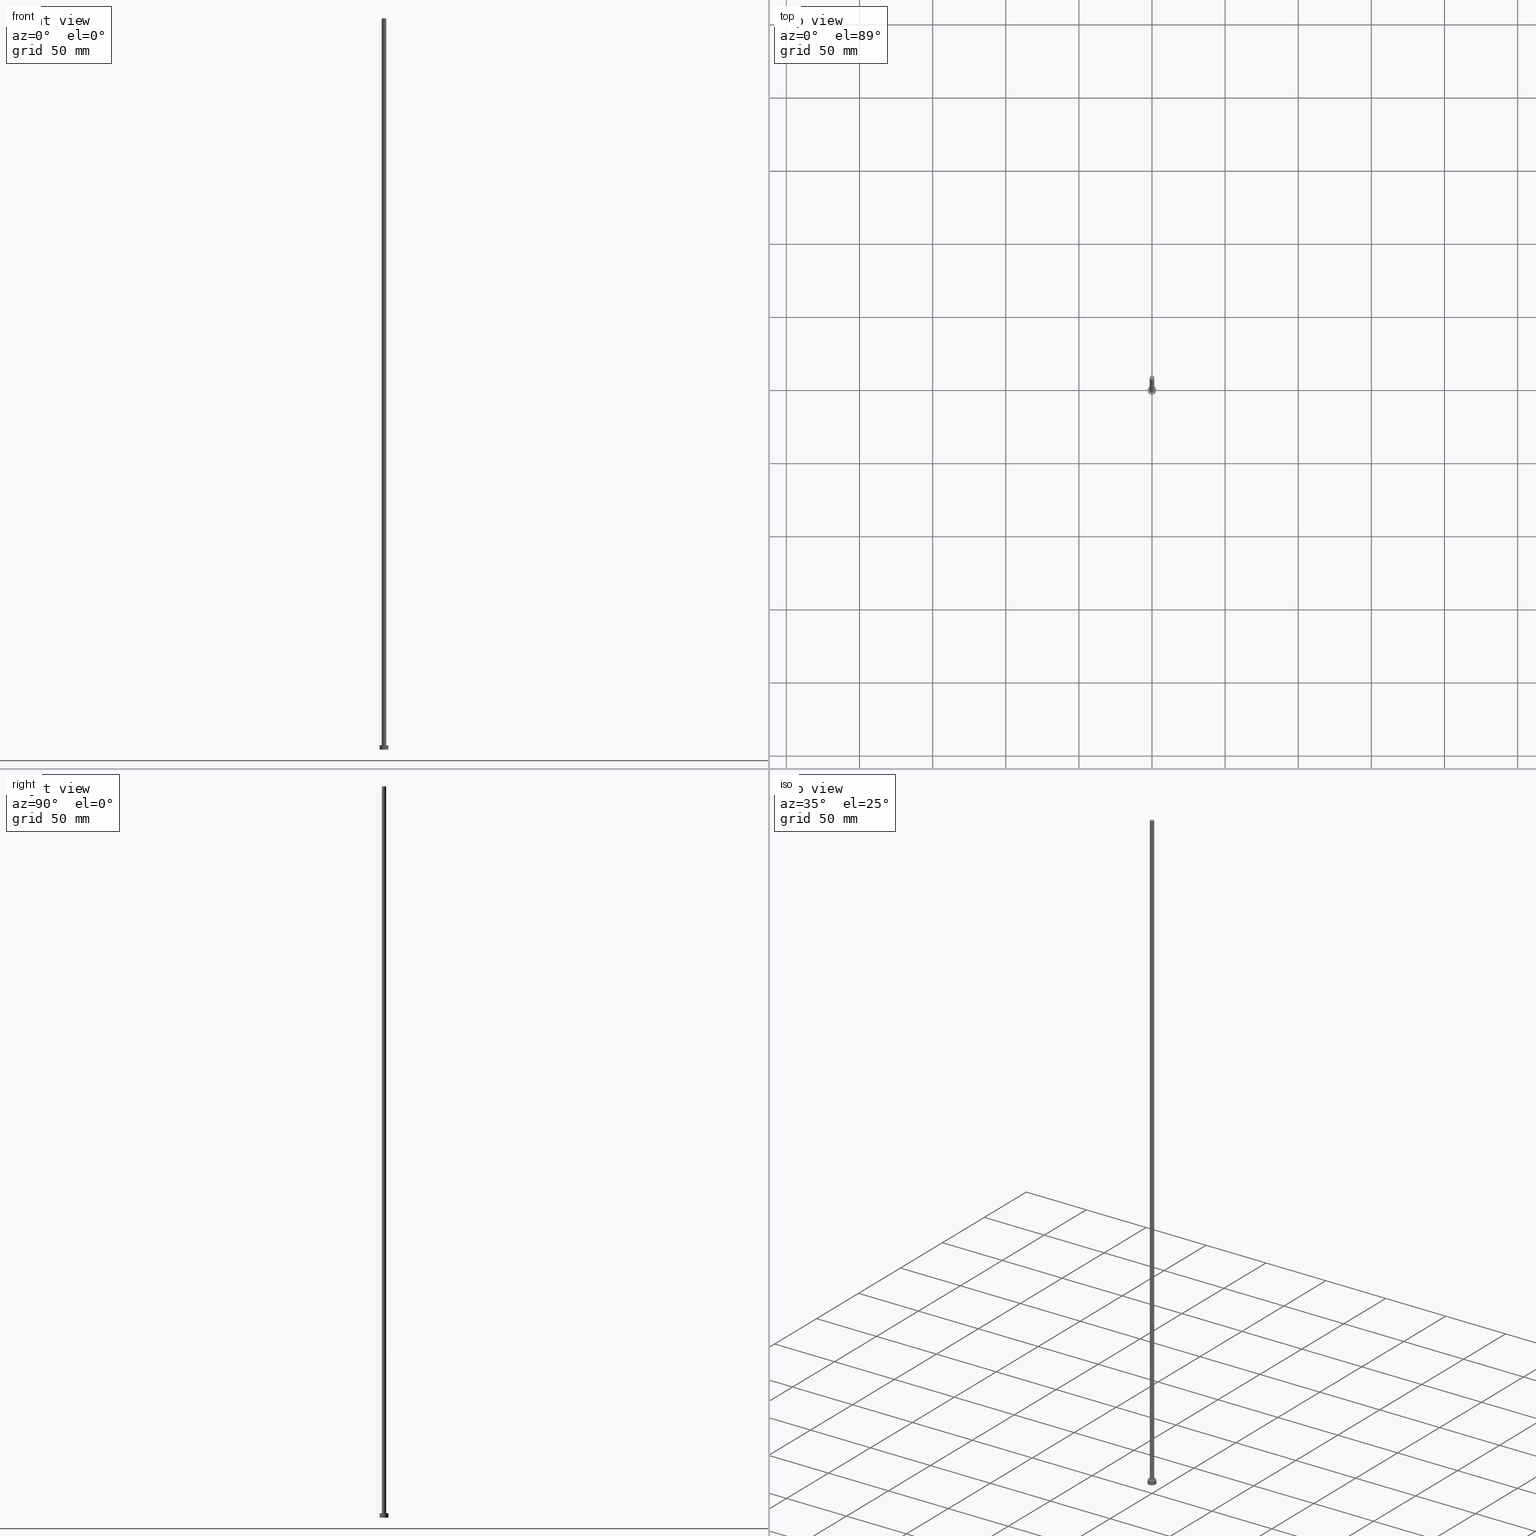
[diagram: canonical four-view strip — front | top / right | iso, engineering-drawing reading convention]
A machine part, canonical four-view strip (front | top / right | iso — engineering-drawing reading convention). The complete STEP part file that produces these views, byte-faithful:
ISO-10303-21;
HEADER;
FILE_DESCRIPTION (( 'STEP AP203' ),
    '1' );
FILE_NAME ('350e.STEP',
    '2023-02-13T16:54:09',
    ( '' ),
    ( '' ),
    'SwSTEP 2.0',
    'SolidWorks 2019',
    '' );
FILE_SCHEMA (( 'CONFIG_CONTROL_DESIGN' ));
ENDSEC;

DATA;
#1 = ADVANCED_FACE ( 'NONE', ( #21, #228 ), #45, .T. ) ;
#2 = DIRECTION ( 'NONE',  ( 0.000000000000000000, 0.000000000000000000, 1.000000000000000000 ) ) ;
#3 = DIRECTION ( 'NONE',  ( 1.000000000000000000, 0.000000000000000000, 0.000000000000000000 ) ) ;
#4 = DIRECTION ( 'NONE',  ( 1.000000000000000000, 0.000000000000000000, -0.000000000000000000 ) ) ;
#5 = VERTEX_POINT ( 'NONE', #154 ) ;
#6 = CARTESIAN_POINT ( 'NONE',  ( -1.500000000000000222, 0.000000000000000000, 3.000000000000000000 ) ) ;
#7 = APPROVAL_ROLE ( '' ) ;
#8 = DIRECTION ( 'NONE',  ( -1.000000000000000000, 0.000000000000000000, 0.000000000000000000 ) ) ;
#9 = PRODUCT_DEFINITION_SHAPE ( 'NONE', 'NONE',  #72 ) ;
#10 = AXIS2_PLACEMENT_3D ( 'NONE', #182, #160, #239 ) ;
#11 = ORIENTED_EDGE ( 'NONE', *, *, #26, .F. ) ;
#12 = ORIENTED_EDGE ( 'NONE', *, *, #169, .T. ) ;
#13 = PERSON_AND_ORGANIZATION ( #65, #241 ) ;
#14 = AXIS2_PLACEMENT_3D ( 'NONE', #107, #165, #125 ) ;
#15 = CALENDAR_DATE ( 2023, 13, 2 ) ;
#16 = EDGE_LOOP ( 'NONE', ( #67, #11 ) ) ;
#17 = PERSON_AND_ORGANIZATION ( #65, #241 ) ;
#18 = LOCAL_TIME ( 17, 54, 9.000000000000000000, #94 ) ;
#19 = ORIENTED_EDGE ( 'NONE', *, *, #253, .F. ) ;
#20 = DIRECTION ( 'NONE',  ( 0.000000000000000000, 0.000000000000000000, 1.000000000000000000 ) ) ;
#21 = FACE_BOUND ( 'NONE', #140, .T. ) ;
#22 = CARTESIAN_POINT ( 'NONE',  ( 0.000000000000000000, 0.000000000000000000, 500.0000000000000000 ) ) ;
#23 = ORIENTED_EDGE ( 'NONE', *, *, #139, .T. ) ;
#24 = CARTESIAN_POINT ( 'NONE',  ( 0.000000000000000000, 0.000000000000000000, 3.000000000000000000 ) ) ;
#25 = APPLICATION_PROTOCOL_DEFINITION ( 'international standard', 'config_control_design', 1994, #137 ) ;
#26 = EDGE_CURVE ( 'NONE', #203, #148, #33, .T. ) ;
#27 = PLANE ( 'NONE',  #195 ) ;
#28 = APPROVAL_PERSON_ORGANIZATION ( #124, #166, #7 ) ;
#29 = EDGE_LOOP ( 'NONE', ( #220, #215, #60, #19 ) ) ;
#30 = VECTOR ( 'NONE', #73, 1000.000000000000000 ) ;
#31 = CALENDAR_DATE ( 2023, 13, 2 ) ;
#32 = CARTESIAN_POINT ( 'NONE',  ( 3.000000000000000444, 3.673940397442060361E-16, 0.000000000000000000 ) ) ;
#33 = CIRCLE ( 'NONE', #74, 3.000000000000000444 ) ;
#34 = EDGE_LOOP ( 'NONE', ( #176, #222, #23, #123 ) ) ;
#35 = EDGE_LOOP ( 'NONE', ( #47, #236 ) ) ;
#36 = DIRECTION ( 'NONE',  ( -0.000000000000000000, -0.000000000000000000, -1.000000000000000000 ) ) ;
#37 = DATE_TIME_ROLE ( 'classification_date' ) ;
#38 = CC_DESIGN_DATE_AND_TIME_ASSIGNMENT ( #199, #37, ( #131 ) ) ;
#39 = CARTESIAN_POINT ( 'NONE',  ( 0.000000000000000000, 0.000000000000000000, 3.000000000000000000 ) ) ;
#40 = APPROVAL_STATUS ( 'not_yet_approved' ) ;
#41 = LOCAL_TIME ( 17, 54, 9.000000000000000000, #108 ) ;
#42 = CYLINDRICAL_SURFACE ( 'NONE', #138, 3.000000000000000444 ) ;
#43 = DIRECTION ( 'NONE',  ( 0.000000000000000000, 0.000000000000000000, 1.000000000000000000 ) ) ;
#44 =( LENGTH_UNIT ( ) NAMED_UNIT ( * ) SI_UNIT ( .MILLI., .METRE. ) );
#45 = PLANE ( 'NONE',  #90 ) ;
#46 = CYLINDRICAL_SURFACE ( 'NONE', #10, 3.000000000000000444 ) ;
#47 = ORIENTED_EDGE ( 'NONE', *, *, #209, .T. ) ;
#48 = PRODUCT_DEFINITION_FORMATION_WITH_SPECIFIED_SOURCE ( 'LIBOVOLN�', '', #252, .NOT_KNOWN. ) ;
#49 = CARTESIAN_POINT ( 'NONE',  ( 0.000000000000000000, 0.000000000000000000, 500.0000000000000000 ) ) ;
#50 = AXIS2_PLACEMENT_3D ( 'NONE', #49, #184, #3 ) ;
#51 = EDGE_CURVE ( 'NONE', #5, #91, #175, .T. ) ;
#52 = PERSON_AND_ORGANIZATION ( #65, #241 ) ;
#53 = DIRECTION ( 'NONE',  ( 0.000000000000000000, 0.000000000000000000, 1.000000000000000000 ) ) ;
#54 = CC_DESIGN_APPROVAL ( #177, ( #131 ) ) ;
#55 = ORIENTED_EDGE ( 'NONE', *, *, #51, .T. ) ;
#56 = LOCAL_TIME ( 17, 54, 9.000000000000000000, #198 ) ;
#57 = FACE_OUTER_BOUND ( 'NONE', #134, .T. ) ;
#58 = DESIGN_CONTEXT ( 'detailed design', #178, 'design' ) ;
#59 = DIRECTION ( 'NONE',  ( 1.000000000000000000, 0.000000000000000000, 0.000000000000000000 ) ) ;
#60 = ORIENTED_EDGE ( 'NONE', *, *, #26, .T. ) ;
#61 = DATE_AND_TIME ( #113, #56 ) ;
#62 = APPROVAL_PERSON_ORGANIZATION ( #99, #109, #247 ) ;
#63 = CIRCLE ( 'NONE', #201, 1.500000000000000222 ) ;
#64 = DIRECTION ( 'NONE',  ( 1.000000000000000000, 0.000000000000000000, 0.000000000000000000 ) ) ;
#65 = PERSON ( 'NEUR�EN�', 'NEUR�EN�', 'NEUR�EN�', ('NEUR�EN�'), ('NEUR�EN�'), ('NEUR�EN�') ) ;
#66 = DIRECTION ( 'NONE',  ( 0.000000000000000000, 0.000000000000000000, 1.000000000000000000 ) ) ;
#67 = ORIENTED_EDGE ( 'NONE', *, *, #219, .F. ) ;
#68 = AXIS2_PLACEMENT_3D ( 'NONE', #240, #2, #4 ) ;
#69 = CARTESIAN_POINT ( 'NONE',  ( 0.000000000000000000, 0.000000000000000000, 500.0000000000000000 ) ) ;
#70 = DIRECTION ( 'NONE',  ( 1.000000000000000000, 0.000000000000000000, 0.000000000000000000 ) ) ;
#71 = EDGE_CURVE ( 'NONE', #91, #5, #63, .T. ) ;
#72 = PRODUCT_DEFINITION ( 'NEZN�M�', '', #48, #58 ) ;
#73 = DIRECTION ( 'NONE',  ( -0.000000000000000000, -0.000000000000000000, -1.000000000000000000 ) ) ;
#74 = AXIS2_PLACEMENT_3D ( 'NONE', #232, #43, #115 ) ;
#75 = DATE_AND_TIME ( #80, #235 ) ;
#76 = VERTEX_POINT ( 'NONE', #161 ) ;
#77 = VERTEX_POINT ( 'NONE', #188 ) ;
#78 = CALENDAR_DATE ( 2023, 13, 2 ) ;
#79 = DIRECTION ( 'NONE',  ( 1.000000000000000000, 0.000000000000000000, -0.000000000000000000 ) ) ;
#80 = CALENDAR_DATE ( 2023, 13, 2 ) ;
#81 = CARTESIAN_POINT ( 'NONE',  ( 0.000000000000000000, 0.000000000000000000, 3.000000000000000000 ) ) ;
#82 = CARTESIAN_POINT ( 'NONE',  ( 0.000000000000000000, 0.000000000000000000, 3.000000000000000000 ) ) ;
#83 = AXIS2_PLACEMENT_3D ( 'NONE', #223, #231, #59 ) ;
#84 = ORIENTED_EDGE ( 'NONE', *, *, #71, .F. ) ;
#85 = ADVANCED_FACE ( 'NONE', ( #121 ), #104, .F. ) ;
#86 = DIRECTION ( 'NONE',  ( 1.000000000000000000, 0.000000000000000000, 0.000000000000000000 ) ) ;
#87 = DIRECTION ( 'NONE',  ( 1.000000000000000000, 0.000000000000000000, -0.000000000000000000 ) ) ;
#88 = LINE ( 'NONE', #245, #30 ) ;
#89 = DATE_AND_TIME ( #31, #41 ) ;
#90 = AXIS2_PLACEMENT_3D ( 'NONE', #81, #132, #79 ) ;
#91 = VERTEX_POINT ( 'NONE', #6 ) ;
#92 = EDGE_LOOP ( 'NONE', ( #12, #173 ) ) ;
#93 = APPROVAL_DATE_TIME ( #61, #109 ) ;
#94 = COORDINATED_UNIVERSAL_TIME_OFFSET ( 1, 0, .AHEAD. ) ;
#95 = VERTEX_POINT ( 'NONE', #187 ) ;
#96 = CIRCLE ( 'NONE', #83, 3.000000000000000444 ) ;
#97 = CARTESIAN_POINT ( 'NONE',  ( 3.000000000000000444, 3.673940397442060361E-16, 3.000000000000000000 ) ) ;
#98 = CIRCLE ( 'NONE', #226, 3.000000000000000444 ) ;
#99 = PERSON_AND_ORGANIZATION ( #65, #241 ) ;
#100 = CARTESIAN_POINT ( 'NONE',  ( 0.000000000000000000, 0.000000000000000000, 3.000000000000000000 ) ) ;
#101 = FACE_OUTER_BOUND ( 'NONE', #150, .T. ) ;
#102 = DIRECTION ( 'NONE',  ( -0.000000000000000000, -0.000000000000000000, -1.000000000000000000 ) ) ;
#103 = ORIENTED_EDGE ( 'NONE', *, *, #51, .F. ) ;
#104 = PLANE ( 'NONE',  #68 ) ;
#105 = DIRECTION ( 'NONE',  ( 0.000000000000000000, 0.000000000000000000, 1.000000000000000000 ) ) ;
#106 = ORIENTED_EDGE ( 'NONE', *, *, #139, .F. ) ;
#107 = CARTESIAN_POINT ( 'NONE',  ( 0.000000000000000000, 0.000000000000000000, 3.000000000000000000 ) ) ;
#108 = COORDINATED_UNIVERSAL_TIME_OFFSET ( 1, 0, .AHEAD. ) ;
#109 = APPROVAL ( #40, 'NEUR�EN�' ) ;
#110 = ORIENTED_EDGE ( 'NONE', *, *, #233, .F. ) ;
#111 = CIRCLE ( 'NONE', #145, 1.500000000000000222 ) ;
#112 = DATE_TIME_ROLE ( 'creation_date' ) ;
#113 = CALENDAR_DATE ( 2023, 13, 2 ) ;
#114 = PERSON_AND_ORGANIZATION ( #65, #241 ) ;
#115 = DIRECTION ( 'NONE',  ( 1.000000000000000000, 0.000000000000000000, 0.000000000000000000 ) ) ;
#116 = VECTOR ( 'NONE', #102, 1000.000000000000000 ) ;
#117 = LINE ( 'NONE', #97, #180 ) ;
#118 = EDGE_CURVE ( 'NONE', #76, #77, #98, .T. ) ;
#119 = DIRECTION ( 'NONE',  ( 1.000000000000000000, 0.000000000000000000, 0.000000000000000000 ) ) ;
#120 = MANIFOLD_SOLID_BREP ( 'P�idat vysunut�m3', #237 ) ;
#121 = FACE_OUTER_BOUND ( 'NONE', #16, .T. ) ;
#122 = VERTEX_POINT ( 'NONE', #158 ) ;
#123 = ORIENTED_EDGE ( 'NONE', *, *, #71, .T. ) ;
#124 = PERSON_AND_ORGANIZATION ( #65, #241 ) ;
#125 = DIRECTION ( 'NONE',  ( 1.000000000000000000, 0.000000000000000000, 0.000000000000000000 ) ) ;
#126 = CC_DESIGN_PERSON_AND_ORGANIZATION_ASSIGNMENT ( #13, #211, ( #72 ) ) ;
#127 = DIRECTION ( 'NONE',  ( -0.000000000000000000, -0.000000000000000000, -1.000000000000000000 ) ) ;
#128 = AXIS2_PLACEMENT_3D ( 'NONE', #144, #127, #8 ) ;
#129 = PERSON_AND_ORGANIZATION ( #65, #241 ) ;
#130 = SECURITY_CLASSIFICATION_LEVEL ( 'unclassified' ) ;
#131 = SECURITY_CLASSIFICATION ( '', '', #130 ) ;
#132 = DIRECTION ( 'NONE',  ( 0.000000000000000000, 0.000000000000000000, 1.000000000000000000 ) ) ;
#133 = ADVANCED_FACE ( 'NONE', ( #163 ), #27, .T. ) ;
#134 = EDGE_LOOP ( 'NONE', ( #136, #183, #55, #106 ) ) ;
#135 = APPROVAL_DATE_TIME ( #75, #177 ) ;
#136 = ORIENTED_EDGE ( 'NONE', *, *, #185, .F. ) ;
#137 = APPLICATION_CONTEXT ( 'configuration controlled 3d designs of mechanical parts and assemblies' ) ;
#138 = AXIS2_PLACEMENT_3D ( 'NONE', #39, #255, #151 ) ;
#139 = EDGE_CURVE ( 'NONE', #122, #91, #164, .T. ) ;
#140 = EDGE_LOOP ( 'NONE', ( #84, #103 ) ) ;
#141 = CC_DESIGN_PERSON_AND_ORGANIZATION_ASSIGNMENT ( #129, #174, ( #131 ) ) ;
#142 = CARTESIAN_POINT ( 'NONE',  ( 0.000000000000000000, 0.000000000000000000, 0.000000000000000000 ) ) ;
#143 = CARTESIAN_POINT ( 'NONE',  ( -3.000000000000000444, 0.000000000000000000, 0.000000000000000000 ) ) ;
#144 = CARTESIAN_POINT ( 'NONE',  ( 0.000000000000000000, 0.000000000000000000, 500.0000000000000000 ) ) ;
#145 = AXIS2_PLACEMENT_3D ( 'NONE', #22, #216, #119 ) ;
#146 = CC_DESIGN_PERSON_AND_ORGANIZATION_ASSIGNMENT ( #114, #172, ( #48 ) ) ;
#147 = FACE_OUTER_BOUND ( 'NONE', #34, .T. ) ;
#148 = VERTEX_POINT ( 'NONE', #143 ) ;
#149 = AXIS2_PLACEMENT_3D ( 'NONE', #142, #66, #86 ) ;
#150 = EDGE_LOOP ( 'NONE', ( #110, #213, #200, #152 ) ) ;
#151 = DIRECTION ( 'NONE',  ( -1.000000000000000000, 0.000000000000000000, 0.000000000000000000 ) ) ;
#152 = ORIENTED_EDGE ( 'NONE', *, *, #219, .T. ) ;
#153 = APPROVAL_ROLE ( '' ) ;
#154 = CARTESIAN_POINT ( 'NONE',  ( 1.500000000000000222, 1.836970198721029934E-16, 3.000000000000000000 ) ) ;
#155 = PERSON_AND_ORGANIZATION ( #65, #241 ) ;
#156 = LINE ( 'NONE', #234, #251 ) ;
#157 = DATE_AND_TIME ( #15, #18 ) ;
#158 = CARTESIAN_POINT ( 'NONE',  ( -1.500000000000000222, 0.000000000000000000, 500.0000000000000000 ) ) ;
#159 = APPLICATION_PROTOCOL_DEFINITION ( 'international standard', 'config_control_design', 1994, #178 ) ;
#160 = DIRECTION ( 'NONE',  ( -0.000000000000000000, -0.000000000000000000, -1.000000000000000000 ) ) ;
#161 = CARTESIAN_POINT ( 'NONE',  ( 3.000000000000000444, 3.673940397442060361E-16, 3.000000000000000000 ) ) ;
#162 = PRODUCT_RELATED_PRODUCT_CATEGORY ( 'detail', '', ( #252 ) ) ;
#163 = FACE_OUTER_BOUND ( 'NONE', #92, .T. ) ;
#164 = LINE ( 'NONE', #218, #116 ) ;
#165 = DIRECTION ( 'NONE',  ( 0.000000000000000000, 0.000000000000000000, 1.000000000000000000 ) ) ;
#166 = APPROVAL ( #189, 'NEUR�EN�' ) ;
#167 = CC_DESIGN_APPROVAL ( #109, ( #48 ) ) ;
#168 = DIRECTION ( 'NONE',  ( -0.000000000000000000, -0.000000000000000000, -1.000000000000000000 ) ) ;
#169 = EDGE_CURVE ( 'NONE', #122, #95, #111, .T. ) ;
#170 = CC_DESIGN_APPROVAL ( #166, ( #72 ) ) ;
#171 = ADVANCED_FACE ( 'NONE', ( #101 ), #46, .T. ) ;
#172 = PERSON_AND_ORGANIZATION_ROLE ( 'design_supplier' ) ;
#173 = ORIENTED_EDGE ( 'NONE', *, *, #185, .T. ) ;
#174 = PERSON_AND_ORGANIZATION_ROLE ( 'classification_officer' ) ;
#175 = CIRCLE ( 'NONE', #229, 1.500000000000000222 ) ;
#176 = ORIENTED_EDGE ( 'NONE', *, *, #197, .F. ) ;
#177 = APPROVAL ( #254, 'NEUR�EN�' ) ;
#178 = APPLICATION_CONTEXT ( 'configuration controlled 3d designs of mechanical parts and assemblies' ) ;
#179 = DIRECTION ( 'NONE',  ( 1.000000000000000000, 0.000000000000000000, 0.000000000000000000 ) ) ;
#180 = VECTOR ( 'NONE', #210, 1000.000000000000000 ) ;
#181 = PERSON_AND_ORGANIZATION_ROLE ( 'design_owner' ) ;
#182 = CARTESIAN_POINT ( 'NONE',  ( 0.000000000000000000, 0.000000000000000000, 3.000000000000000000 ) ) ;
#183 = ORIENTED_EDGE ( 'NONE', *, *, #197, .T. ) ;
#184 = DIRECTION ( 'NONE',  ( 0.000000000000000000, 0.000000000000000000, 1.000000000000000000 ) ) ;
#185 = EDGE_CURVE ( 'NONE', #95, #122, #244, .T. ) ;
#186 = LOCAL_TIME ( 17, 54, 9.000000000000000000, #230 ) ;
#187 = CARTESIAN_POINT ( 'NONE',  ( 1.500000000000000222, 1.836970198721029934E-16, 500.0000000000000000 ) ) ;
#188 = CARTESIAN_POINT ( 'NONE',  ( -3.000000000000000444, 0.000000000000000000, 3.000000000000000000 ) ) ;
#189 = APPROVAL_STATUS ( 'not_yet_approved' ) ;
#190 = ADVANCED_BREP_SHAPE_REPRESENTATION ( '350e', ( #120, #149 ), #205 ) ;
#191 = ADVANCED_FACE ( 'NONE', ( #147 ), #208, .T. ) ;
#192 = APPROVAL_DATE_TIME ( #89, #166 ) ;
#193 = UNCERTAINTY_MEASURE_WITH_UNIT (LENGTH_MEASURE( 1.000000000000000082E-05 ), #44, 'distance_accuracy_value', 'NONE');
#194 = DIRECTION ( 'NONE',  ( -1.000000000000000000, 0.000000000000000000, 0.000000000000000000 ) ) ;
#195 = AXIS2_PLACEMENT_3D ( 'NONE', #69, #53, #87 ) ;
#196 =( NAMED_UNIT ( * ) PLANE_ANGLE_UNIT ( ) SI_UNIT ( $, .RADIAN. ) );
#197 = EDGE_CURVE ( 'NONE', #95, #5, #88, .T. ) ;
#198 = COORDINATED_UNIVERSAL_TIME_OFFSET ( 1, 0, .AHEAD. ) ;
#199 = DATE_AND_TIME ( #78, #186 ) ;
#200 = ORIENTED_EDGE ( 'NONE', *, *, #253, .T. ) ;
#201 = AXIS2_PLACEMENT_3D ( 'NONE', #82, #105, #70 ) ;
#202 = FACE_OUTER_BOUND ( 'NONE', #29, .T. ) ;
#203 = VERTEX_POINT ( 'NONE', #32 ) ;
#204 = DIRECTION ( 'NONE',  ( 0.000000000000000000, 0.000000000000000000, 1.000000000000000000 ) ) ;
#205 =( GEOMETRIC_REPRESENTATION_CONTEXT ( 3 ) GLOBAL_UNCERTAINTY_ASSIGNED_CONTEXT ( ( #193 ) ) GLOBAL_UNIT_ASSIGNED_CONTEXT ( ( #44, #196, #249 ) ) REPRESENTATION_CONTEXT ( 'NONE', 'WORKASPACE' ) );
#206 = AXIS2_PLACEMENT_3D ( 'NONE', #225, #168, #194 ) ;
#207 = CC_DESIGN_PERSON_AND_ORGANIZATION_ASSIGNMENT ( #155, #248, ( #48 ) ) ;
#208 = CYLINDRICAL_SURFACE ( 'NONE', #206, 1.500000000000000222 ) ;
#209 = EDGE_CURVE ( 'NONE', #77, #76, #212, .T. ) ;
#210 = DIRECTION ( 'NONE',  ( -0.000000000000000000, -0.000000000000000000, -1.000000000000000000 ) ) ;
#211 = PERSON_AND_ORGANIZATION_ROLE ( 'creator' ) ;
#212 = CIRCLE ( 'NONE', #14, 3.000000000000000444 ) ;
#213 = ORIENTED_EDGE ( 'NONE', *, *, #209, .F. ) ;
#214 = ADVANCED_FACE ( 'NONE', ( #57 ), #242, .T. ) ;
#215 = ORIENTED_EDGE ( 'NONE', *, *, #233, .T. ) ;
#216 = DIRECTION ( 'NONE',  ( 0.000000000000000000, 0.000000000000000000, 1.000000000000000000 ) ) ;
#217 = CC_DESIGN_PERSON_AND_ORGANIZATION_ASSIGNMENT ( #52, #181, ( #252 ) ) ;
#218 = CARTESIAN_POINT ( 'NONE',  ( -1.500000000000000222, 0.000000000000000000, 500.0000000000000000 ) ) ;
#219 = EDGE_CURVE ( 'NONE', #148, #203, #96, .T. ) ;
#220 = ORIENTED_EDGE ( 'NONE', *, *, #118, .F. ) ;
#221 = CC_DESIGN_SECURITY_CLASSIFICATION ( #131, ( #48 ) ) ;
#222 = ORIENTED_EDGE ( 'NONE', *, *, #169, .F. ) ;
#223 = CARTESIAN_POINT ( 'NONE',  ( 0.000000000000000000, 0.000000000000000000, 0.000000000000000000 ) ) ;
#224 = ADVANCED_FACE ( 'NONE', ( #202 ), #42, .T. ) ;
#225 = CARTESIAN_POINT ( 'NONE',  ( 0.000000000000000000, 0.000000000000000000, 500.0000000000000000 ) ) ;
#226 = AXIS2_PLACEMENT_3D ( 'NONE', #24, #204, #64 ) ;
#227 = SHAPE_DEFINITION_REPRESENTATION ( #9, #190 ) ;
#228 = FACE_OUTER_BOUND ( 'NONE', #35, .T. ) ;
#229 = AXIS2_PLACEMENT_3D ( 'NONE', #100, #20, #179 ) ;
#230 = COORDINATED_UNIVERSAL_TIME_OFFSET ( 1, 0, .AHEAD. ) ;
#231 = DIRECTION ( 'NONE',  ( 0.000000000000000000, 0.000000000000000000, 1.000000000000000000 ) ) ;
#232 = CARTESIAN_POINT ( 'NONE',  ( 0.000000000000000000, 0.000000000000000000, 0.000000000000000000 ) ) ;
#233 = EDGE_CURVE ( 'NONE', #76, #203, #117, .T. ) ;
#234 = CARTESIAN_POINT ( 'NONE',  ( -3.000000000000000444, 0.000000000000000000, 3.000000000000000000 ) ) ;
#235 = LOCAL_TIME ( 17, 54, 9.000000000000000000, #250 ) ;
#236 = ORIENTED_EDGE ( 'NONE', *, *, #118, .T. ) ;
#237 = CLOSED_SHELL ( 'NONE', ( #214, #224, #171, #1, #85, #191, #133 ) ) ;
#238 = MECHANICAL_CONTEXT ( 'NONE', #137, 'mechanical' ) ;
#239 = DIRECTION ( 'NONE',  ( -1.000000000000000000, 0.000000000000000000, 0.000000000000000000 ) ) ;
#240 = CARTESIAN_POINT ( 'NONE',  ( 0.000000000000000000, 0.000000000000000000, 0.000000000000000000 ) ) ;
#241 = ORGANIZATION ( 'NEUR�EN�', 'NEUR�EN�', '' ) ;
#242 = CYLINDRICAL_SURFACE ( 'NONE', #128, 1.500000000000000222 ) ;
#243 = APPROVAL_PERSON_ORGANIZATION ( #17, #177, #153 ) ;
#244 = CIRCLE ( 'NONE', #50, 1.500000000000000222 ) ;
#245 = CARTESIAN_POINT ( 'NONE',  ( 1.500000000000000222, 1.836970198721029934E-16, 500.0000000000000000 ) ) ;
#246 = CC_DESIGN_DATE_AND_TIME_ASSIGNMENT ( #157, #112, ( #72 ) ) ;
#247 = APPROVAL_ROLE ( '' ) ;
#248 = PERSON_AND_ORGANIZATION_ROLE ( 'creator' ) ;
#249 =( NAMED_UNIT ( * ) SI_UNIT ( $, .STERADIAN. ) SOLID_ANGLE_UNIT ( ) );
#250 = COORDINATED_UNIVERSAL_TIME_OFFSET ( 1, 0, .AHEAD. ) ;
#251 = VECTOR ( 'NONE', #36, 1000.000000000000000 ) ;
#252 = PRODUCT ( '350e', '350e', '', ( #238 ) ) ;
#253 = EDGE_CURVE ( 'NONE', #77, #148, #156, .T. ) ;
#254 = APPROVAL_STATUS ( 'not_yet_approved' ) ;
#255 = DIRECTION ( 'NONE',  ( -0.000000000000000000, -0.000000000000000000, -1.000000000000000000 ) ) ;
ENDSEC;
END-ISO-10303-21;
